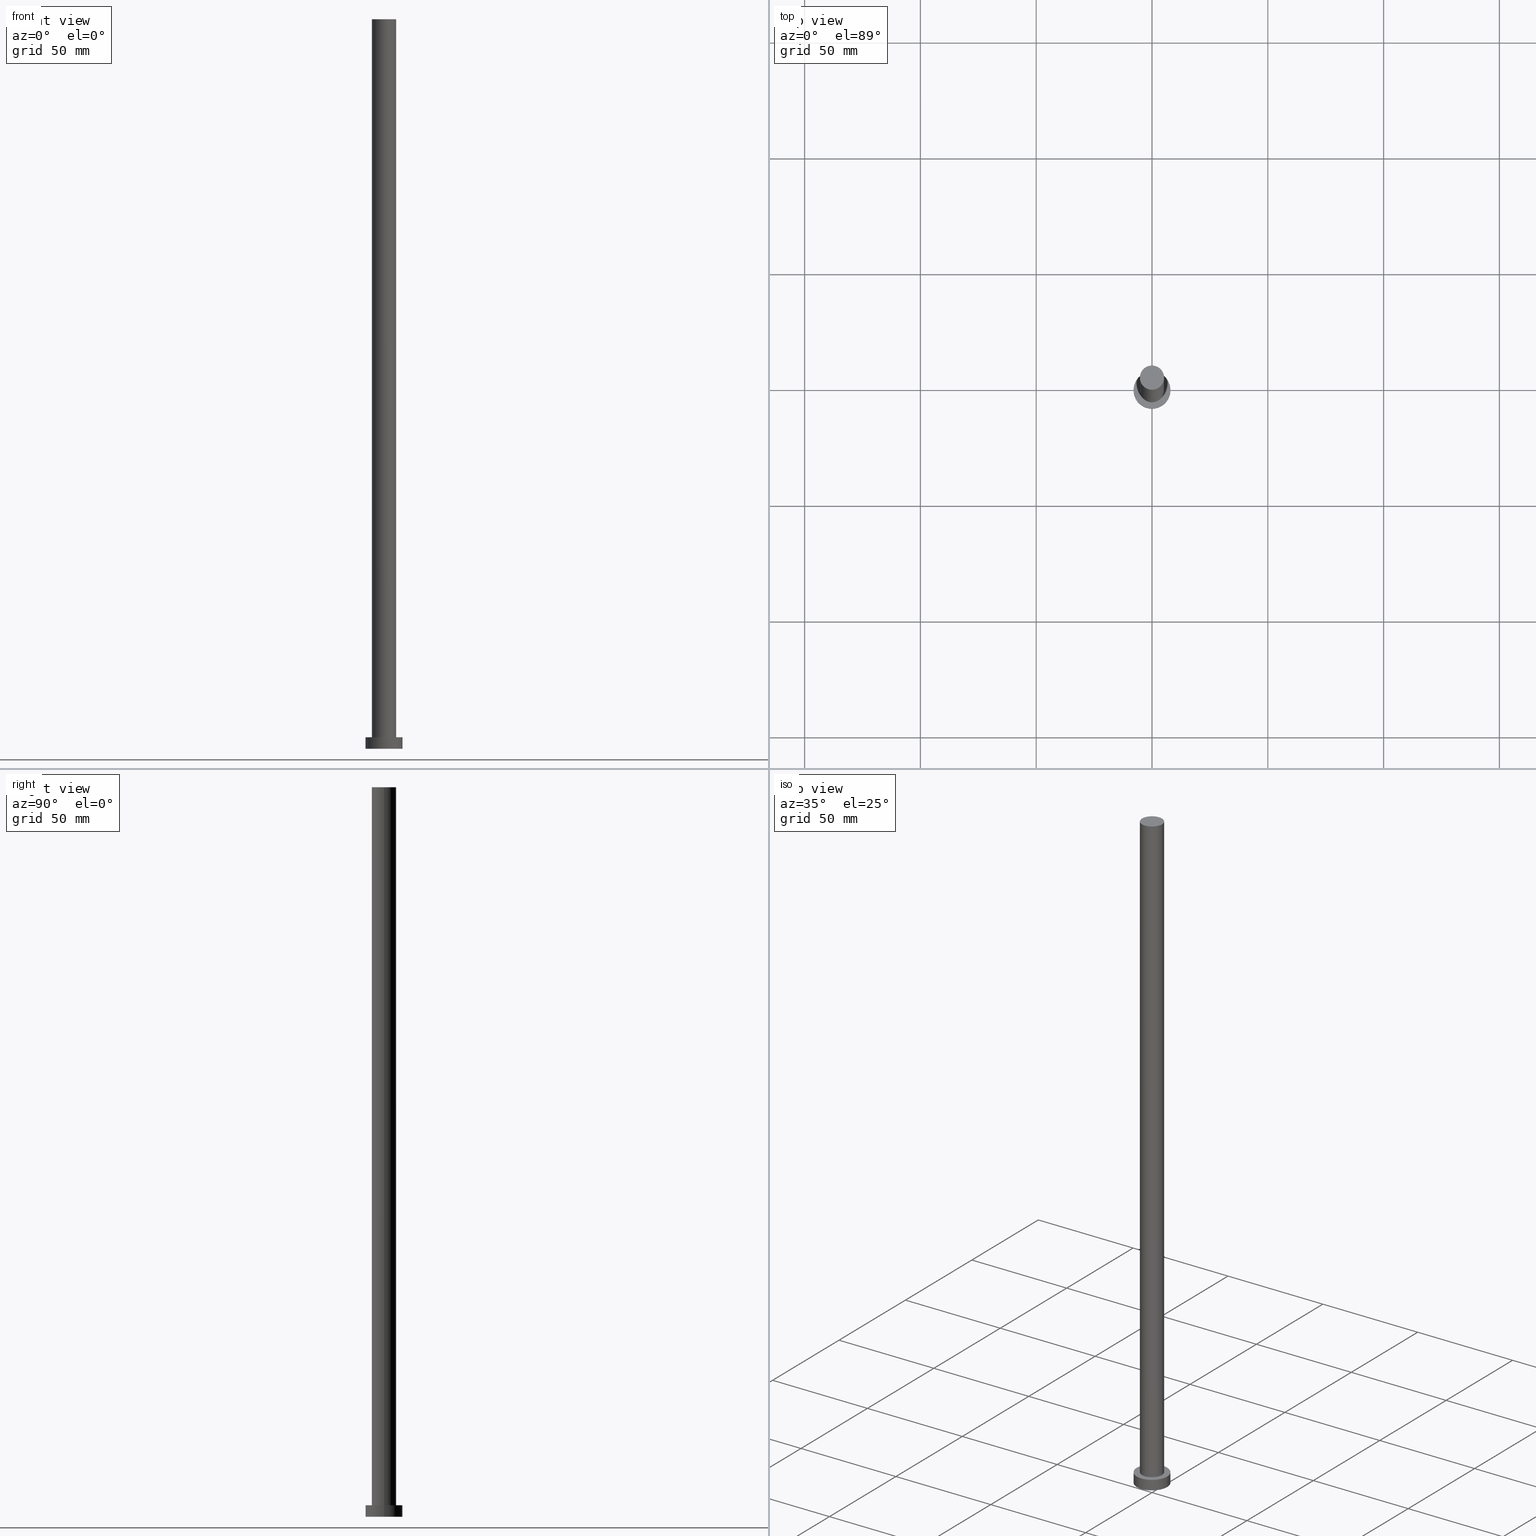
[diagram: canonical four-view strip — front | top / right | iso, engineering-drawing reading convention]
A machine part, canonical four-view strip (front | top / right | iso — engineering-drawing reading convention). The complete STEP part file that produces these views, byte-faithful:
ISO-10303-21;
HEADER;
FILE_DESCRIPTION (( 'STEP AP203' ),
    '1' );
FILE_NAME ('b329.STEP',
    '2023-02-13T11:11:44',
    ( '' ),
    ( '' ),
    'SwSTEP 2.0',
    'SolidWorks 2019',
    '' );
FILE_SCHEMA (( 'CONFIG_CONTROL_DESIGN' ));
ENDSEC;

DATA;
#1 = PLANE ( 'NONE',  #143 ) ;
#2 = AXIS2_PLACEMENT_3D ( 'NONE', #102, #136, #163 ) ;
#3 = DIRECTION ( 'NONE',  ( -0.000000000000000000, -0.000000000000000000, -1.000000000000000000 ) ) ;
#4 = CARTESIAN_POINT ( 'NONE',  ( 0.000000000000000000, 0.000000000000000000, 5.000000000000000000 ) ) ;
#5 = VECTOR ( 'NONE', #226, 1000.000000000000000 ) ;
#6 = LOCAL_TIME ( 12, 11, 44.00000000000000000, #223 ) ;
#7 = DIRECTION ( 'NONE',  ( -0.000000000000000000, -0.000000000000000000, -1.000000000000000000 ) ) ;
#8 = CARTESIAN_POINT ( 'NONE',  ( 5.250000000000000888, 6.429395695523605139E-16, 5.000000000000000000 ) ) ;
#9 = DATE_AND_TIME ( #127, #17 ) ;
#10 = CC_DESIGN_APPROVAL ( #108, ( #193 ) ) ;
#11 = APPROVAL_ROLE ( '' ) ;
#12 = EDGE_CURVE ( 'NONE', #255, #36, #161, .T. ) ;
#13 = COORDINATED_UNIVERSAL_TIME_OFFSET ( 1, 0, .AHEAD. ) ;
#14 = VERTEX_POINT ( 'NONE', #119 ) ;
#15 = ORIENTED_EDGE ( 'NONE', *, *, #249, .T. ) ;
#16 = EDGE_LOOP ( 'NONE', ( #135, #248, #15, #175 ) ) ;
#17 = LOCAL_TIME ( 12, 11, 44.00000000000000000, #106 ) ;
#18 = DIRECTION ( 'NONE',  ( 1.000000000000000000, 0.000000000000000000, 0.000000000000000000 ) ) ;
#19 = CALENDAR_DATE ( 2023, 13, 2 ) ;
#20 = EDGE_CURVE ( 'NONE', #255, #14, #117, .T. ) ;
#21 = CIRCLE ( 'NONE', #154, 8.000000000000000000 ) ;
#22 = MANIFOLD_SOLID_BREP ( 'P�idat vysunut�m3', #75 ) ;
#23 = DIRECTION ( 'NONE',  ( 0.000000000000000000, 0.000000000000000000, 1.000000000000000000 ) ) ;
#24 = EDGE_LOOP ( 'NONE', ( #197, #177, #156, #157 ) ) ;
#25 = EDGE_CURVE ( 'NONE', #36, #230, #21, .T. ) ;
#26 = CARTESIAN_POINT ( 'NONE',  ( 0.000000000000000000, 0.000000000000000000, 5.000000000000000000 ) ) ;
#27 = FACE_BOUND ( 'NONE', #50, .T. ) ;
#28 = CARTESIAN_POINT ( 'NONE',  ( -8.000000000000000000, 0.000000000000000000, 5.000000000000000000 ) ) ;
#29 = LINE ( 'NONE', #32, #227 ) ;
#30 = PRODUCT_DEFINITION_SHAPE ( 'NONE', 'NONE',  #240 ) ;
#31 = DIRECTION ( 'NONE',  ( 1.000000000000000000, 0.000000000000000000, 0.000000000000000000 ) ) ;
#32 = CARTESIAN_POINT ( 'NONE',  ( -5.250000000000000888, 0.000000000000000000, 315.0000000000000000 ) ) ;
#33 = ADVANCED_FACE ( 'NONE', ( #81 ), #180, .T. ) ;
#34 = CC_DESIGN_PERSON_AND_ORGANIZATION_ASSIGNMENT ( #130, #243, ( #72 ) ) ;
#35 = SECURITY_CLASSIFICATION_LEVEL ( 'unclassified' ) ;
#36 = VERTEX_POINT ( 'NONE', #158 ) ;
#37 = VERTEX_POINT ( 'NONE', #235 ) ;
#38 = EDGE_LOOP ( 'NONE', ( #192, #96 ) ) ;
#39 = ORIENTED_EDGE ( 'NONE', *, *, #69, .F. ) ;
#40 = VERTEX_POINT ( 'NONE', #83 ) ;
#41 = AXIS2_PLACEMENT_3D ( 'NONE', #148, #74, #70 ) ;
#42 = DIRECTION ( 'NONE',  ( -0.000000000000000000, -0.000000000000000000, -1.000000000000000000 ) ) ;
#43 = CYLINDRICAL_SURFACE ( 'NONE', #147, 8.000000000000000000 ) ;
#44 = SHAPE_DEFINITION_REPRESENTATION ( #30, #110 ) ;
#45 = AXIS2_PLACEMENT_3D ( 'NONE', #4, #48, #97 ) ;
#46 = CARTESIAN_POINT ( 'NONE',  ( 0.000000000000000000, 0.000000000000000000, 5.000000000000000000 ) ) ;
#47 = PERSON ( 'NEUR�EN�', 'NEUR�EN�', 'NEUR�EN�', ('NEUR�EN�'), ('NEUR�EN�'), ('NEUR�EN�') ) ;
#48 = DIRECTION ( 'NONE',  ( -0.000000000000000000, -0.000000000000000000, -1.000000000000000000 ) ) ;
#49 = VECTOR ( 'NONE', #7, 1000.000000000000000 ) ;
#50 = EDGE_LOOP ( 'NONE', ( #191, #207 ) ) ;
#51 = CALENDAR_DATE ( 2023, 13, 2 ) ;
#52 = PLANE ( 'NONE',  #41 ) ;
#53 = CC_DESIGN_DATE_AND_TIME_ASSIGNMENT ( #9, #90, ( #240 ) ) ;
#54 =( LENGTH_UNIT ( ) NAMED_UNIT ( * ) SI_UNIT ( .MILLI., .METRE. ) );
#55 = EDGE_CURVE ( 'NONE', #40, #37, #185, .T. ) ;
#56 = EDGE_CURVE ( 'NONE', #79, #178, #64, .T. ) ;
#57 = CC_DESIGN_APPROVAL ( #103, ( #240 ) ) ;
#58 = PERSON_AND_ORGANIZATION_ROLE ( 'design_supplier' ) ;
#59 = EDGE_LOOP ( 'NONE', ( #94, #121 ) ) ;
#60 = EDGE_LOOP ( 'NONE', ( #39, #113, #115, #229 ) ) ;
#61 = DIRECTION ( 'NONE',  ( -1.000000000000000000, 0.000000000000000000, 0.000000000000000000 ) ) ;
#62 = DATE_AND_TIME ( #19, #245 ) ;
#63 = CARTESIAN_POINT ( 'NONE',  ( 0.000000000000000000, 0.000000000000000000, 5.000000000000000000 ) ) ;
#64 = CIRCLE ( 'NONE', #203, 5.250000000000000888 ) ;
#65 = DIRECTION ( 'NONE',  ( 1.000000000000000000, 0.000000000000000000, 0.000000000000000000 ) ) ;
#66 = FACE_OUTER_BOUND ( 'NONE', #38, .T. ) ;
#67 = CC_DESIGN_APPROVAL ( #212, ( #116 ) ) ;
#68 = DATE_AND_TIME ( #92, #77 ) ;
#69 = EDGE_CURVE ( 'NONE', #14, #255, #252, .T. ) ;
#70 = DIRECTION ( 'NONE',  ( 1.000000000000000000, 0.000000000000000000, -0.000000000000000000 ) ) ;
#71 = CIRCLE ( 'NONE', #209, 5.250000000000000888 ) ;
#72 = PRODUCT ( 'b329', 'b329', '', ( #202 ) ) ;
#73 = CARTESIAN_POINT ( 'NONE',  ( 5.250000000000000888, 6.429395695523605139E-16, 315.0000000000000000 ) ) ;
#74 = DIRECTION ( 'NONE',  ( 0.000000000000000000, 0.000000000000000000, 1.000000000000000000 ) ) ;
#75 = CLOSED_SHELL ( 'NONE', ( #114, #33, #122, #109, #214, #80, #155 ) ) ;
#76 = APPROVAL_DATE_TIME ( #244, #212 ) ;
#77 = LOCAL_TIME ( 12, 11, 44.00000000000000000, #205 ) ;
#78 = ORIENTED_EDGE ( 'NONE', *, *, #25, .T. ) ;
#79 = VERTEX_POINT ( 'NONE', #241 ) ;
#80 = ADVANCED_FACE ( 'NONE', ( #195 ), #219, .T. ) ;
#81 = FACE_OUTER_BOUND ( 'NONE', #60, .T. ) ;
#82 = CARTESIAN_POINT ( 'NONE',  ( -8.000000000000000000, 0.000000000000000000, 5.000000000000000000 ) ) ;
#83 = CARTESIAN_POINT ( 'NONE',  ( 5.250000000000000888, 6.429395695523605139E-16, 315.0000000000000000 ) ) ;
#84 = APPLICATION_CONTEXT ( 'configuration controlled 3d designs of mechanical parts and assemblies' ) ;
#85 = CARTESIAN_POINT ( 'NONE',  ( 0.000000000000000000, 0.000000000000000000, 0.000000000000000000 ) ) ;
#86 = CC_DESIGN_PERSON_AND_ORGANIZATION_ASSIGNMENT ( #133, #153, ( #116 ) ) ;
#87 = DIRECTION ( 'NONE',  ( 1.000000000000000000, 0.000000000000000000, 0.000000000000000000 ) ) ;
#88 = APPROVAL_STATUS ( 'not_yet_approved' ) ;
#89 = DIRECTION ( 'NONE',  ( 0.000000000000000000, 0.000000000000000000, 1.000000000000000000 ) ) ;
#90 = DATE_TIME_ROLE ( 'creation_date' ) ;
#91 = CARTESIAN_POINT ( 'NONE',  ( 8.000000000000000000, 9.797174393178825657E-16, 5.000000000000000000 ) ) ;
#92 = CALENDAR_DATE ( 2023, 13, 2 ) ;
#93 = APPROVAL_ROLE ( '' ) ;
#94 = ORIENTED_EDGE ( 'NONE', *, *, #20, .T. ) ;
#95 = EDGE_LOOP ( 'NONE', ( #250, #189 ) ) ;
#96 = ORIENTED_EDGE ( 'NONE', *, *, #55, .T. ) ;
#97 = DIRECTION ( 'NONE',  ( -1.000000000000000000, 0.000000000000000000, 0.000000000000000000 ) ) ;
#98 = APPLICATION_CONTEXT ( 'configuration controlled 3d designs of mechanical parts and assemblies' ) ;
#99 = CARTESIAN_POINT ( 'NONE',  ( 0.000000000000000000, 0.000000000000000000, 5.000000000000000000 ) ) ;
#100 = UNCERTAINTY_MEASURE_WITH_UNIT (LENGTH_MEASURE( 1.000000000000000082E-05 ), #54, 'distance_accuracy_value', 'NONE');
#101 = PLANE ( 'NONE',  #150 ) ;
#102 = CARTESIAN_POINT ( 'NONE',  ( 0.000000000000000000, 0.000000000000000000, 315.0000000000000000 ) ) ;
#103 = APPROVAL ( #187, 'NEUR�EN�' ) ;
#104 = CARTESIAN_POINT ( 'NONE',  ( 0.000000000000000000, 0.000000000000000000, 315.0000000000000000 ) ) ;
#105 = FACE_OUTER_BOUND ( 'NONE', #95, .T. ) ;
#106 = COORDINATED_UNIVERSAL_TIME_OFFSET ( 1, 0, .AHEAD. ) ;
#107 = LINE ( 'NONE', #73, #5 ) ;
#109 = ADVANCED_FACE ( 'NONE', ( #27, #181 ), #101, .T. ) ;
#108 = APPROVAL ( #88, 'NEUR�EN�' ) ;
#110 = ADVANCED_BREP_SHAPE_REPRESENTATION ( 'b329', ( #22, #217 ), #126 ) ;
#111 = PERSON_AND_ORGANIZATION ( #47, #211 ) ;
#112 = VECTOR ( 'NONE', #42, 1000.000000000000000 ) ;
#113 = ORIENTED_EDGE ( 'NONE', *, *, #213, .T. ) ;
#114 = ADVANCED_FACE ( 'NONE', ( #196 ), #238, .T. ) ;
#115 = ORIENTED_EDGE ( 'NONE', *, *, #168, .T. ) ;
#116 = PRODUCT_DEFINITION_FORMATION_WITH_SPECIFIED_SOURCE ( 'LIBOVOLN�', '', #72, .NOT_KNOWN. ) ;
#117 = CIRCLE ( 'NONE', #124, 8.000000000000000000 ) ;
#118 = DIRECTION ( 'NONE',  ( 1.000000000000000000, 0.000000000000000000, 0.000000000000000000 ) ) ;
#119 = CARTESIAN_POINT ( 'NONE',  ( 8.000000000000000000, 9.797174393178825657E-16, 5.000000000000000000 ) ) ;
#120 = DIRECTION ( 'NONE',  ( 1.000000000000000000, 0.000000000000000000, -0.000000000000000000 ) ) ;
#121 = ORIENTED_EDGE ( 'NONE', *, *, #69, .T. ) ;
#122 = ADVANCED_FACE ( 'NONE', ( #218 ), #43, .T. ) ;
#123 = DIRECTION ( 'NONE',  ( 0.000000000000000000, 0.000000000000000000, 1.000000000000000000 ) ) ;
#124 = AXIS2_PLACEMENT_3D ( 'NONE', #46, #123, #87 ) ;
#125 = PERSON_AND_ORGANIZATION_ROLE ( 'creator' ) ;
#126 =( GEOMETRIC_REPRESENTATION_CONTEXT ( 3 ) GLOBAL_UNCERTAINTY_ASSIGNED_CONTEXT ( ( #100 ) ) GLOBAL_UNIT_ASSIGNED_CONTEXT ( ( #54, #166, #129 ) ) REPRESENTATION_CONTEXT ( 'NONE', 'WORKASPACE' ) );
#127 = CALENDAR_DATE ( 2023, 13, 2 ) ;
#128 = DIRECTION ( 'NONE',  ( 1.000000000000000000, 0.000000000000000000, 0.000000000000000000 ) ) ;
#129 =( NAMED_UNIT ( * ) SI_UNIT ( $, .STERADIAN. ) SOLID_ANGLE_UNIT ( ) );
#130 = PERSON_AND_ORGANIZATION ( #47, #211 ) ;
#131 = LOCAL_TIME ( 12, 11, 44.00000000000000000, #13 ) ;
#132 = APPROVAL_PERSON_ORGANIZATION ( #172, #103, #11 ) ;
#133 = PERSON_AND_ORGANIZATION ( #47, #211 ) ;
#134 = CIRCLE ( 'NONE', #231, 5.250000000000000888 ) ;
#135 = ORIENTED_EDGE ( 'NONE', *, *, #55, .F. ) ;
#136 = DIRECTION ( 'NONE',  ( -0.000000000000000000, -0.000000000000000000, -1.000000000000000000 ) ) ;
#137 = DIRECTION ( 'NONE',  ( 1.000000000000000000, 0.000000000000000000, 0.000000000000000000 ) ) ;
#138 = APPROVAL_DATE_TIME ( #62, #108 ) ;
#139 = DESIGN_CONTEXT ( 'detailed design', #84, 'design' ) ;
#140 = DIRECTION ( 'NONE',  ( 0.000000000000000000, 0.000000000000000000, 1.000000000000000000 ) ) ;
#141 = CC_DESIGN_PERSON_AND_ORGANIZATION_ASSIGNMENT ( #224, #125, ( #240 ) ) ;
#142 = DIRECTION ( 'NONE',  ( 0.000000000000000000, 0.000000000000000000, 1.000000000000000000 ) ) ;
#143 = AXIS2_PLACEMENT_3D ( 'NONE', #237, #142, #220 ) ;
#144 = APPROVAL_PERSON_ORGANIZATION ( #169, #212, #93 ) ;
#145 = DIRECTION ( 'NONE',  ( 1.000000000000000000, 0.000000000000000000, 0.000000000000000000 ) ) ;
#146 = APPROVAL_DATE_TIME ( #68, #103 ) ;
#147 = AXIS2_PLACEMENT_3D ( 'NONE', #99, #3, #179 ) ;
#148 = CARTESIAN_POINT ( 'NONE',  ( 0.000000000000000000, 0.000000000000000000, 0.000000000000000000 ) ) ;
#149 = DIRECTION ( 'NONE',  ( 0.000000000000000000, 0.000000000000000000, 1.000000000000000000 ) ) ;
#150 = AXIS2_PLACEMENT_3D ( 'NONE', #253, #23, #120 ) ;
#151 = PRODUCT_RELATED_PRODUCT_CATEGORY ( 'detail', '', ( #72 ) ) ;
#152 = APPLICATION_PROTOCOL_DEFINITION ( 'international standard', 'config_control_design', 1994, #84 ) ;
#153 = PERSON_AND_ORGANIZATION_ROLE ( 'creator' ) ;
#154 = AXIS2_PLACEMENT_3D ( 'NONE', #215, #198, #65 ) ;
#155 = ADVANCED_FACE ( 'NONE', ( #66 ), #1, .T. ) ;
#156 = ORIENTED_EDGE ( 'NONE', *, *, #174, .T. ) ;
#157 = ORIENTED_EDGE ( 'NONE', *, *, #56, .T. ) ;
#158 = CARTESIAN_POINT ( 'NONE',  ( -8.000000000000000000, 0.000000000000000000, 0.000000000000000000 ) ) ;
#159 = PERSON_AND_ORGANIZATION ( #47, #211 ) ;
#160 = CC_DESIGN_SECURITY_CLASSIFICATION ( #193, ( #116 ) ) ;
#161 = LINE ( 'NONE', #82, #112 ) ;
#162 = CC_DESIGN_DATE_AND_TIME_ASSIGNMENT ( #234, #216, ( #193 ) ) ;
#163 = DIRECTION ( 'NONE',  ( -1.000000000000000000, 0.000000000000000000, 0.000000000000000000 ) ) ;
#164 = DIRECTION ( 'NONE',  ( 0.000000000000000000, 0.000000000000000000, 1.000000000000000000 ) ) ;
#165 = CARTESIAN_POINT ( 'NONE',  ( 0.000000000000000000, 0.000000000000000000, 315.0000000000000000 ) ) ;
#166 =( NAMED_UNIT ( * ) PLANE_ANGLE_UNIT ( ) SI_UNIT ( $, .RADIAN. ) );
#167 = DIRECTION ( 'NONE',  ( 0.000000000000000000, 0.000000000000000000, 1.000000000000000000 ) ) ;
#168 = EDGE_CURVE ( 'NONE', #230, #36, #204, .T. ) ;
#169 = PERSON_AND_ORGANIZATION ( #47, #211 ) ;
#170 = APPLICATION_PROTOCOL_DEFINITION ( 'international standard', 'config_control_design', 1994, #98 ) ;
#171 = EDGE_CURVE ( 'NONE', #37, #40, #134, .T. ) ;
#172 = PERSON_AND_ORGANIZATION ( #47, #211 ) ;
#173 = CC_DESIGN_PERSON_AND_ORGANIZATION_ASSIGNMENT ( #111, #188, ( #193 ) ) ;
#174 = EDGE_CURVE ( 'NONE', #37, #79, #29, .T. ) ;
#175 = ORIENTED_EDGE ( 'NONE', *, *, #174, .F. ) ;
#176 = AXIS2_PLACEMENT_3D ( 'NONE', #165, #182, #118 ) ;
#177 = ORIENTED_EDGE ( 'NONE', *, *, #171, .F. ) ;
#178 = VERTEX_POINT ( 'NONE', #8 ) ;
#179 = DIRECTION ( 'NONE',  ( -1.000000000000000000, 0.000000000000000000, 0.000000000000000000 ) ) ;
#180 = CYLINDRICAL_SURFACE ( 'NONE', #45, 8.000000000000000000 ) ;
#181 = FACE_OUTER_BOUND ( 'NONE', #59, .T. ) ;
#182 = DIRECTION ( 'NONE',  ( 0.000000000000000000, 0.000000000000000000, 1.000000000000000000 ) ) ;
#183 = CARTESIAN_POINT ( 'NONE',  ( 0.000000000000000000, 0.000000000000000000, 0.000000000000000000 ) ) ;
#184 = CARTESIAN_POINT ( 'NONE',  ( 8.000000000000000000, 9.797174393178825657E-16, 0.000000000000000000 ) ) ;
#185 = CIRCLE ( 'NONE', #176, 5.250000000000000888 ) ;
#186 = DIRECTION ( 'NONE',  ( -0.000000000000000000, -0.000000000000000000, -1.000000000000000000 ) ) ;
#187 = APPROVAL_STATUS ( 'not_yet_approved' ) ;
#188 = PERSON_AND_ORGANIZATION_ROLE ( 'classification_officer' ) ;
#189 = ORIENTED_EDGE ( 'NONE', *, *, #168, .F. ) ;
#190 = EDGE_CURVE ( 'NONE', #40, #178, #107, .T. ) ;
#191 = ORIENTED_EDGE ( 'NONE', *, *, #56, .F. ) ;
#192 = ORIENTED_EDGE ( 'NONE', *, *, #171, .T. ) ;
#193 = SECURITY_CLASSIFICATION ( '', '', #35 ) ;
#194 = DIRECTION ( 'NONE',  ( 0.000000000000000000, 0.000000000000000000, 1.000000000000000000 ) ) ;
#195 = FACE_OUTER_BOUND ( 'NONE', #24, .T. ) ;
#196 = FACE_OUTER_BOUND ( 'NONE', #16, .T. ) ;
#197 = ORIENTED_EDGE ( 'NONE', *, *, #190, .F. ) ;
#198 = DIRECTION ( 'NONE',  ( 0.000000000000000000, 0.000000000000000000, 1.000000000000000000 ) ) ;
#199 = DIRECTION ( 'NONE',  ( 1.000000000000000000, 0.000000000000000000, 0.000000000000000000 ) ) ;
#200 = AXIS2_PLACEMENT_3D ( 'NONE', #85, #164, #145 ) ;
#201 = CARTESIAN_POINT ( 'NONE',  ( 0.000000000000000000, 0.000000000000000000, 5.000000000000000000 ) ) ;
#202 = MECHANICAL_CONTEXT ( 'NONE', #98, 'mechanical' ) ;
#203 = AXIS2_PLACEMENT_3D ( 'NONE', #63, #194, #137 ) ;
#204 = CIRCLE ( 'NONE', #200, 8.000000000000000000 ) ;
#205 = COORDINATED_UNIVERSAL_TIME_OFFSET ( 1, 0, .AHEAD. ) ;
#206 = PERSON_AND_ORGANIZATION ( #47, #211 ) ;
#207 = ORIENTED_EDGE ( 'NONE', *, *, #249, .F. ) ;
#208 = EDGE_LOOP ( 'NONE', ( #247, #246, #210, #78 ) ) ;
#209 = AXIS2_PLACEMENT_3D ( 'NONE', #201, #89, #199 ) ;
#210 = ORIENTED_EDGE ( 'NONE', *, *, #12, .T. ) ;
#211 = ORGANIZATION ( 'NEUR�EN�', 'NEUR�EN�', '' ) ;
#212 = APPROVAL ( #242, 'NEUR�EN�' ) ;
#213 = EDGE_CURVE ( 'NONE', #14, #230, #225, .T. ) ;
#214 = ADVANCED_FACE ( 'NONE', ( #105 ), #52, .F. ) ;
#215 = CARTESIAN_POINT ( 'NONE',  ( 0.000000000000000000, 0.000000000000000000, 0.000000000000000000 ) ) ;
#216 = DATE_TIME_ROLE ( 'classification_date' ) ;
#217 = AXIS2_PLACEMENT_3D ( 'NONE', #183, #167, #128 ) ;
#218 = FACE_OUTER_BOUND ( 'NONE', #208, .T. ) ;
#219 = CYLINDRICAL_SURFACE ( 'NONE', #2, 5.250000000000000888 ) ;
#220 = DIRECTION ( 'NONE',  ( 1.000000000000000000, 0.000000000000000000, -0.000000000000000000 ) ) ;
#221 = APPROVAL_PERSON_ORGANIZATION ( #159, #108, #254 ) ;
#222 = CARTESIAN_POINT ( 'NONE',  ( 0.000000000000000000, 0.000000000000000000, 315.0000000000000000 ) ) ;
#223 = COORDINATED_UNIVERSAL_TIME_OFFSET ( 1, 0, .AHEAD. ) ;
#224 = PERSON_AND_ORGANIZATION ( #47, #211 ) ;
#225 = LINE ( 'NONE', #91, #49 ) ;
#226 = DIRECTION ( 'NONE',  ( -0.000000000000000000, -0.000000000000000000, -1.000000000000000000 ) ) ;
#227 = VECTOR ( 'NONE', #186, 1000.000000000000000 ) ;
#228 = CALENDAR_DATE ( 2023, 13, 2 ) ;
#229 = ORIENTED_EDGE ( 'NONE', *, *, #12, .F. ) ;
#230 = VERTEX_POINT ( 'NONE', #184 ) ;
#231 = AXIS2_PLACEMENT_3D ( 'NONE', #222, #149, #31 ) ;
#232 = AXIS2_PLACEMENT_3D ( 'NONE', #104, #233, #61 ) ;
#233 = DIRECTION ( 'NONE',  ( -0.000000000000000000, -0.000000000000000000, -1.000000000000000000 ) ) ;
#234 = DATE_AND_TIME ( #51, #6 ) ;
#235 = CARTESIAN_POINT ( 'NONE',  ( -5.250000000000000888, 0.000000000000000000, 315.0000000000000000 ) ) ;
#236 = AXIS2_PLACEMENT_3D ( 'NONE', #26, #140, #18 ) ;
#237 = CARTESIAN_POINT ( 'NONE',  ( 0.000000000000000000, 0.000000000000000000, 315.0000000000000000 ) ) ;
#238 = CYLINDRICAL_SURFACE ( 'NONE', #232, 5.250000000000000888 ) ;
#239 = COORDINATED_UNIVERSAL_TIME_OFFSET ( 1, 0, .AHEAD. ) ;
#240 = PRODUCT_DEFINITION ( 'NEZN�M�', '', #116, #139 ) ;
#241 = CARTESIAN_POINT ( 'NONE',  ( -5.250000000000000888, 0.000000000000000000, 5.000000000000000000 ) ) ;
#242 = APPROVAL_STATUS ( 'not_yet_approved' ) ;
#243 = PERSON_AND_ORGANIZATION_ROLE ( 'design_owner' ) ;
#244 = DATE_AND_TIME ( #228, #131 ) ;
#245 = LOCAL_TIME ( 12, 11, 44.00000000000000000, #239 ) ;
#246 = ORIENTED_EDGE ( 'NONE', *, *, #20, .F. ) ;
#247 = ORIENTED_EDGE ( 'NONE', *, *, #213, .F. ) ;
#248 = ORIENTED_EDGE ( 'NONE', *, *, #190, .T. ) ;
#249 = EDGE_CURVE ( 'NONE', #178, #79, #71, .T. ) ;
#250 = ORIENTED_EDGE ( 'NONE', *, *, #25, .F. ) ;
#251 = CC_DESIGN_PERSON_AND_ORGANIZATION_ASSIGNMENT ( #206, #58, ( #116 ) ) ;
#252 = CIRCLE ( 'NONE', #236, 8.000000000000000000 ) ;
#253 = CARTESIAN_POINT ( 'NONE',  ( 0.000000000000000000, 0.000000000000000000, 5.000000000000000000 ) ) ;
#254 = APPROVAL_ROLE ( '' ) ;
#255 = VERTEX_POINT ( 'NONE', #28 ) ;
ENDSEC;
END-ISO-10303-21;
